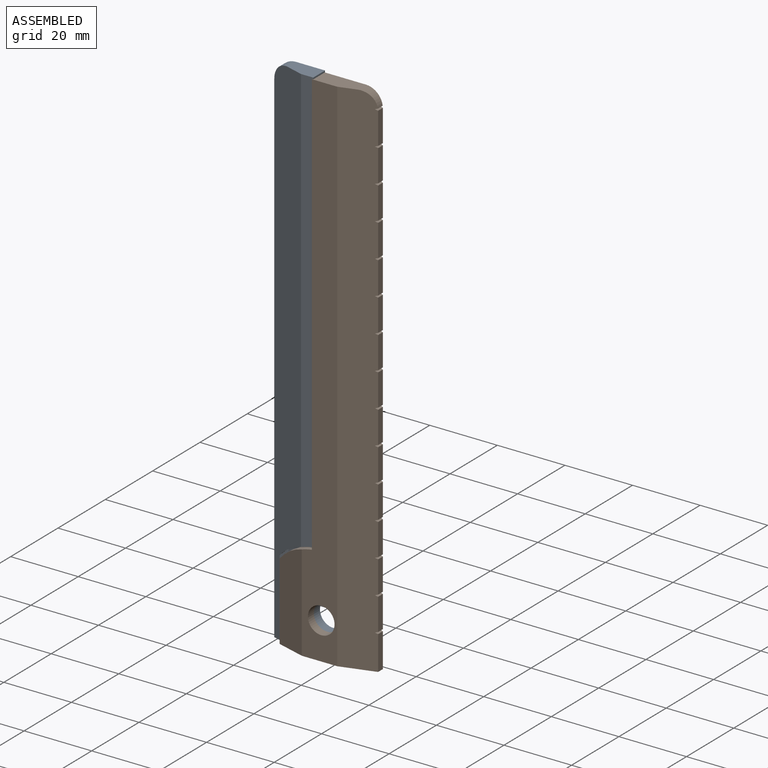
[diagram: assembled view]
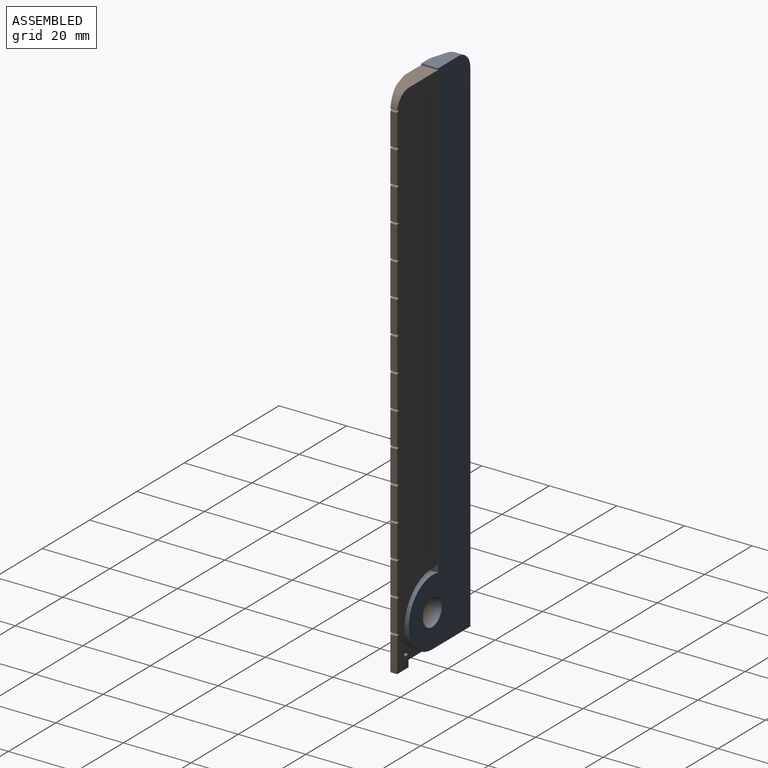
[diagram: assembled view, second angle]
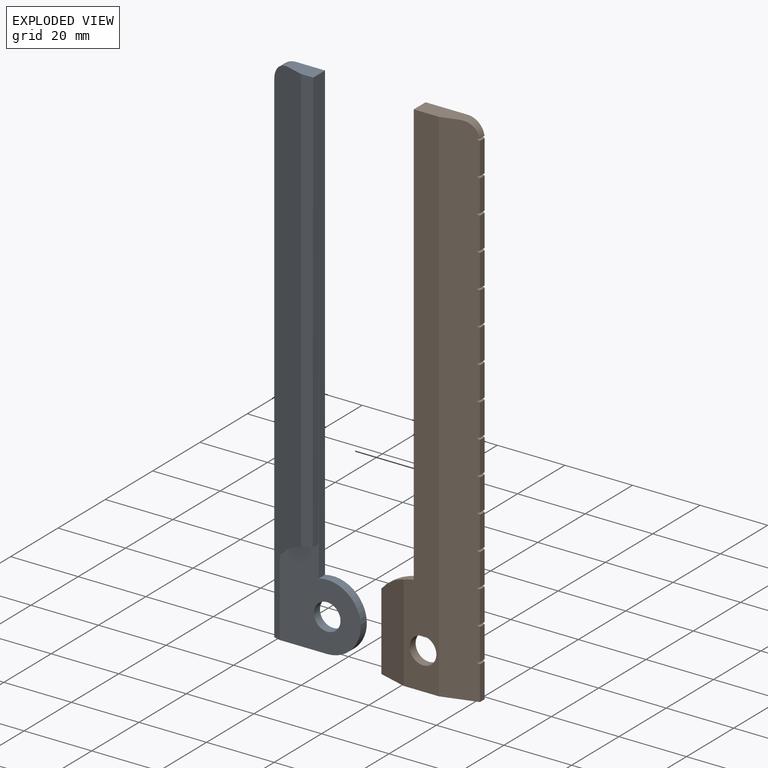
[diagram: exploded view]
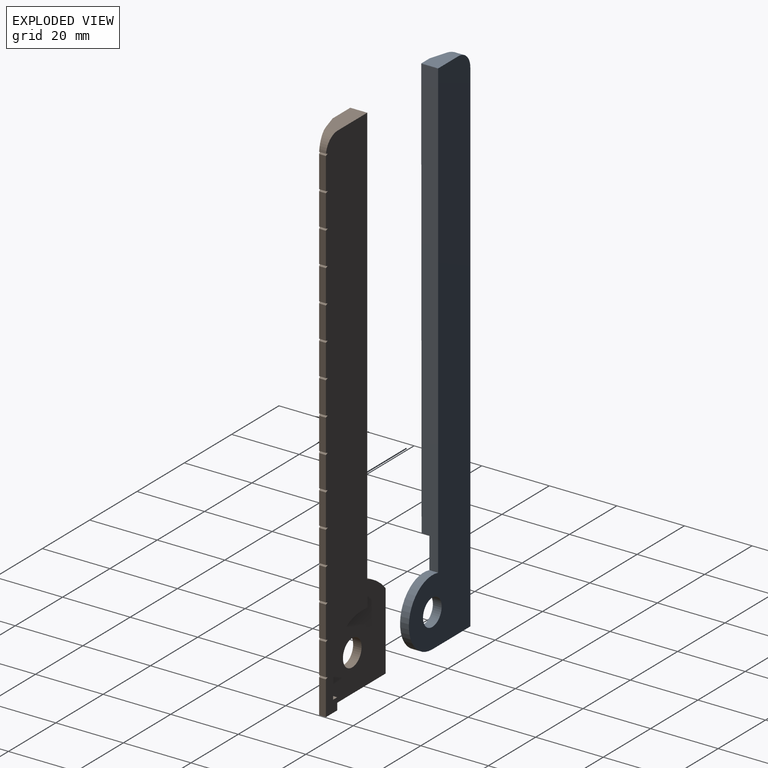
[diagram: exploded view, second angle]
ASSEMBLY  parts=2 mates=3
PART A: 14 faces, bbox 26x5x154.4 mm
  f0: plane 16.06x2.6mm, normal (0,0,-1), area 41.1mm2, adj f1,f3,f5,f6,f12
  f1: cylinder r=9.93mm len=19.86mm, axis (0,1,0), area 87.6mm2, adj f0,f5,f10,f12
  f2: cylinder r=3.94mm len=7.89mm, axis (0,1,0), area 64.4mm2, adj f5,f12
  f3: plane 149.44x2mm, normal (-1,0,0), area 298.9mm2, adj f0,f5,f6,f8
  f4: plane 8.59x5mm, normal (0,0,1), area 39.2mm2, adj f5,f6,f7,f8,f9
  f5: plane 154.44x25.99mm, normal (0,1,0), area 2249.6mm2, adj f0,f1,f2,f3,f4,f8,f9,f10
  f6: plane 154.44x10mm, normal (-0.29,-0.96,0), area 1391.2mm2, adj f0,f3,f4,f7,f8,f11,f12
  f7: plane 126.5x3.6mm, normal (0,-1,0), area 445.6mm2, adj f4,f6,f9,f10,f11,f13
  f8: cylinder r=5mm len=5mm, axis (0,1,0), area 20mm2, adj f3,f4,f5,f6
  f9: plane 5x0.13mm, normal (0.99,0,0.12), area 0.7mm2, adj f4,f5,f7,f10
  f10: plane 134.76x5mm, normal (1,0,0), area 363.7mm2, adj f1,f5,f7,f9,f12,f13
  f11: cylinder r=19mm len=11.47mm, axis (0,-1,0), area 19.5mm2, adj f6,f7,f12,f13
  f12: plane 148.77x23.99mm, normal (0,-1,0), area 471.4mm2, adj f0,f1,f2,f6,f10,f11,f13
  f13: plane 120.01x2.4mm, normal (1,0,0), area 288mm2, adj f7,f10,f11,f12
PART B: 62 faces, bbox 28.8x5x155 mm
  f0: plane 29.17x25.76mm, normal (0,1,0), area 547.4mm2, adj f1,f2,f3,f24,f56,f57,f58,f59
  f1: plane 28.46x8.33mm, normal (-0.29,-0.96,0), area 228mm2, adj f0,f2,f5,f24
  f2: cylinder r=18.4mm len=11.32mm, axis (0,1,0), area 19.6mm2, adj f0,f1,f5,f56
  f3: cylinder r=3.94mm len=7.89mm, axis (0,1,0), area 61.9mm2, adj f0,f5
  f4: plane 12.49x5mm, normal (0,0,1), area 58.7mm2, adj f5,f21,f23,f25,f56
  f5: plane 155x10.48mm, normal (0,-1,0), area 1198.2mm2, adj f1,f2,f3,f4,f23,f24,f56
  f6: plane 9.42x2mm, normal (1,0,0), area 18.8mm2, adj f23,f25,f53,f54
  f7: plane 10.11x2mm, normal (1,0,0), area 20.2mm2, adj f23,f24,f25,f55
  f8: plane 9.42x2mm, normal (1,0,0), area 18.8mm2, adj f23,f25,f51,f52
  f9: plane 9.42x2mm, normal (1,0,0), area 18.8mm2, adj f23,f25,f49,f50
  f10: plane 9.42x2mm, normal (1,0,0), area 18.8mm2, adj f23,f25,f47,f48
  f11: plane 9.42x2mm, normal (1,0,0), area 18.8mm2, adj f23,f25,f45,f46
  f12: plane 9.42x2mm, normal (1,0,0), area 18.8mm2, adj f23,f25,f43,f44
  f13: plane 9.42x2mm, normal (1,0,0), area 18.8mm2, adj f23,f25,f41,f42
  f14: plane 9.42x2mm, normal (1,0,0), area 18.8mm2, adj f23,f25,f39,f40
  f15: plane 9.42x2mm, normal (1,0,0), area 18.8mm2, adj f23,f25,f37,f38
  f16: plane 9.42x2mm, normal (1,0,0), area 18.8mm2, adj f23,f25,f35,f36
  f17: plane 9.42x2mm, normal (1,0,0), area 18.8mm2, adj f23,f25,f33,f34
  f18: plane 9.42x2mm, normal (1,0,0), area 18.8mm2, adj f23,f25,f31,f32
  f19: plane 9.42x2mm, normal (1,0,0), area 18.8mm2, adj f23,f25,f29,f30
  f20: plane 9.31x2mm, normal (1,0,0), area 18.6mm2, adj f22,f23,f25,f28
  f21: cylinder r=5mm len=4.95mm, axis (0,-1,0), area 18.6mm2, adj f4,f23,f25,f26
  f22: cylinder r=5mm len=2mm, axis (0,-1,0), area 0.2mm2, adj f20,f23,f25,f27
  f23: plane 155x10mm, normal (0.29,-0.96,0), area 1609.2mm2, adj f4,f5,f6,f7,f8,f9,f10,f11
  f24: plane 28.81x5mm, normal (0,0,-1), area 58.6mm2, adj f0,f1,f5,f7,f23,f25,f61
  f25: plane 155x17.49mm, normal (0,1,0), area 2410.6mm2, adj f4,f6,f7,f8,f9,f10,f11,f12
  f26: plane 2.23x0.73mm, normal (0.35,0,-0.94), area 1.6mm2, adj f21,f23,f25,f27
  f27: plane 2.23x0.77mm, normal (0.35,0,0.94), area 1.7mm2, adj f22,f23,f25,f26
  f28: plane 2.23x0.77mm, normal (0.35,0,-0.94), area 1.7mm2, adj f20,f23,f25,f29
  f29: plane 2.23x0.77mm, normal (0.35,0,0.94), area 1.7mm2, adj f19,f23,f25,f28
  f30: plane 2.23x0.77mm, normal (0.35,0,-0.94), area 1.7mm2, adj f19,f23,f25,f31
  f31: plane 2.23x0.77mm, normal (0.35,0,0.94), area 1.7mm2, adj f18,f23,f25,f30
  f32: plane 2.23x0.77mm, normal (0.35,0,-0.94), area 1.7mm2, adj f18,f23,f25,f33
  f33: plane 2.23x0.77mm, normal (0.35,0,0.94), area 1.7mm2, adj f17,f23,f25,f32
  f34: plane 2.23x0.77mm, normal (0.35,0,-0.94), area 1.7mm2, adj f17,f23,f25,f35
  f35: plane 2.23x0.77mm, normal (0.35,0,0.94), area 1.7mm2, adj f16,f23,f25,f34
  f36: plane 2.23x0.77mm, normal (0.35,0,-0.94), area 1.7mm2, adj f16,f23,f25,f37
  f37: plane 2.23x0.77mm, normal (0.35,0,0.94), area 1.7mm2, adj f15,f23,f25,f36
  f38: plane 2.23x0.77mm, normal (0.35,0,-0.94), area 1.7mm2, adj f15,f23,f25,f39
  f39: plane 2.23x0.77mm, normal (0.35,0,0.94), area 1.7mm2, adj f14,f23,f25,f38
  f40: plane 2.23x0.77mm, normal (0.35,0,-0.94), area 1.7mm2, adj f14,f23,f25,f41
  f41: plane 2.23x0.77mm, normal (0.35,0,0.94), area 1.7mm2, adj f13,f23,f25,f40
  f42: plane 2.23x0.77mm, normal (0.35,0,-0.94), area 1.7mm2, adj f13,f23,f25,f43
  f43: plane 2.23x0.77mm, normal (0.35,0,0.94), area 1.7mm2, adj f12,f23,f25,f42
  f44: plane 2.23x0.77mm, normal (0.35,0,-0.94), area 1.7mm2, adj f12,f23,f25,f45
  f45: plane 2.23x0.77mm, normal (0.35,0,0.94), area 1.7mm2, adj f11,f23,f25,f44
  f46: plane 2.23x0.77mm, normal (0.35,0,-0.94), area 1.7mm2, adj f11,f23,f25,f47
  f47: plane 2.23x0.77mm, normal (0.35,0,0.94), area 1.7mm2, adj f10,f23,f25,f46
  f48: plane 2.23x0.77mm, normal (0.35,0,-0.94), area 1.7mm2, adj f10,f23,f25,f49
  f49: plane 2.23x0.77mm, normal (0.35,0,0.94), area 1.7mm2, adj f9,f23,f25,f48
  f50: plane 2.23x0.77mm, normal (0.35,0,-0.94), area 1.7mm2, adj f9,f23,f25,f51
  f51: plane 2.23x0.77mm, normal (0.35,0,0.94), area 1.7mm2, adj f8,f23,f25,f50
  f52: plane 2.23x0.77mm, normal (0.35,0,-0.94), area 1.7mm2, adj f8,f23,f25,f53
  f53: plane 2.23x0.77mm, normal (0.35,0,0.94), area 1.7mm2, adj f6,f23,f25,f52
  f54: plane 2.23x0.77mm, normal (0.35,0,-0.94), area 1.7mm2, adj f6,f23,f25,f55
  f55: plane 2.23x0.77mm, normal (0.35,0,0.94), area 1.7mm2, adj f7,f23,f25,f54
  f56: plane 132.35x5mm, normal (-1,0,0), area 645.4mm2, adj f0,f2,f4,f5,f25,f59
  f57: plane 7.48x2.5mm, normal (-1,0,0), area 18.7mm2, adj f0,f25,f58,f60
  f58: cylinder r=11.68mm len=11.68mm, axis (0,1,0), area 45.9mm2, adj f0,f25,f57,f59
  f59: plane 2.76x2.5mm, normal (0,0,-1), area 6.9mm2, adj f0,f25,f56,f58
  f60: plane 2.5x1.75mm, normal (0,0,1), area 4.4mm2, adj f0,f25,f57,f61
  f61: plane 3.5x2.5mm, normal (-1,0,0), area 8.7mm2, adj f0,f24,f25,f60
PLACE A rot(axis=(0,1,0),0deg) t=(-36.93,-25.18,-1.49)mm
PLACE B t=(-36.63,-25.28,-1.97)mm fixed
MATE parallel B.f56 <-> A.f10  axis (-1,0,0) through (-23.63,-27.75,88.44)mm
MATE planar A.f12 <-> B.f0  axis (0,-1,0) through (-24.93,-27.78,12.25)mm
MATE cylindrical A.f1 <-> B.f2  axis (0,1,0) through (-20.88,-25.18,9)mm
